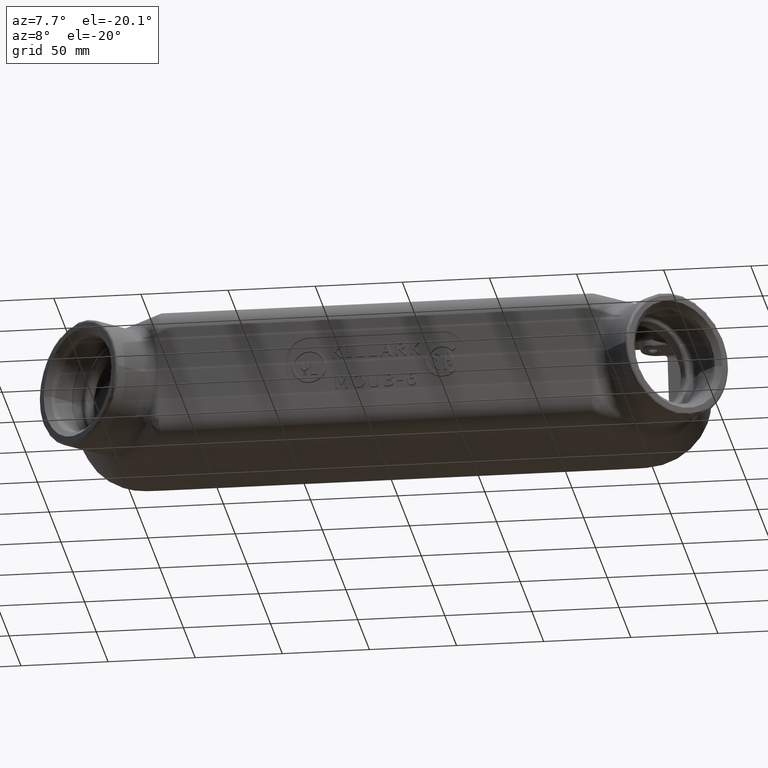
[diagram: clean part render]
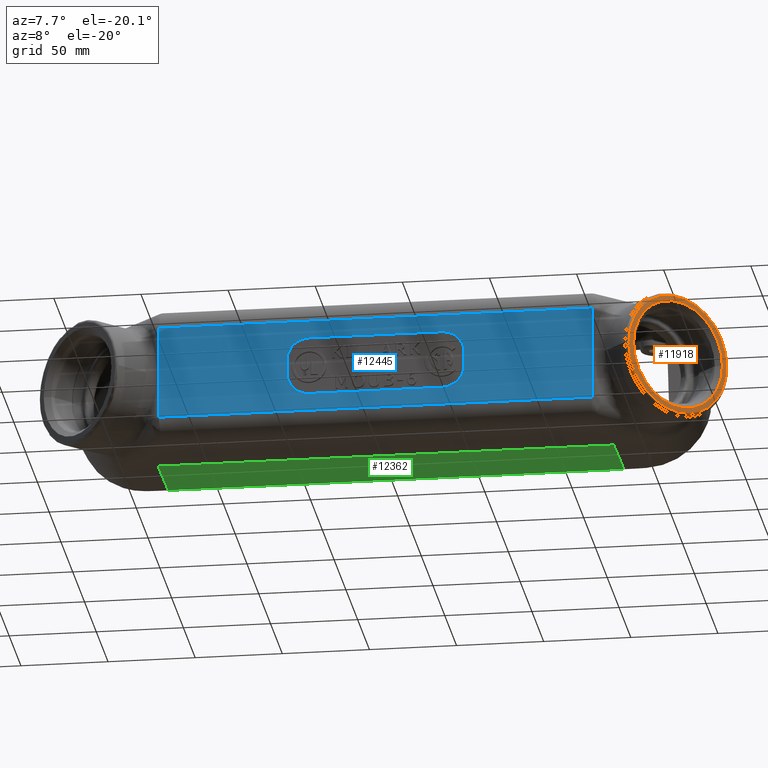
[diagram: same view with three faces highlighted in distinct colors, each labeled with its STEP entity id]
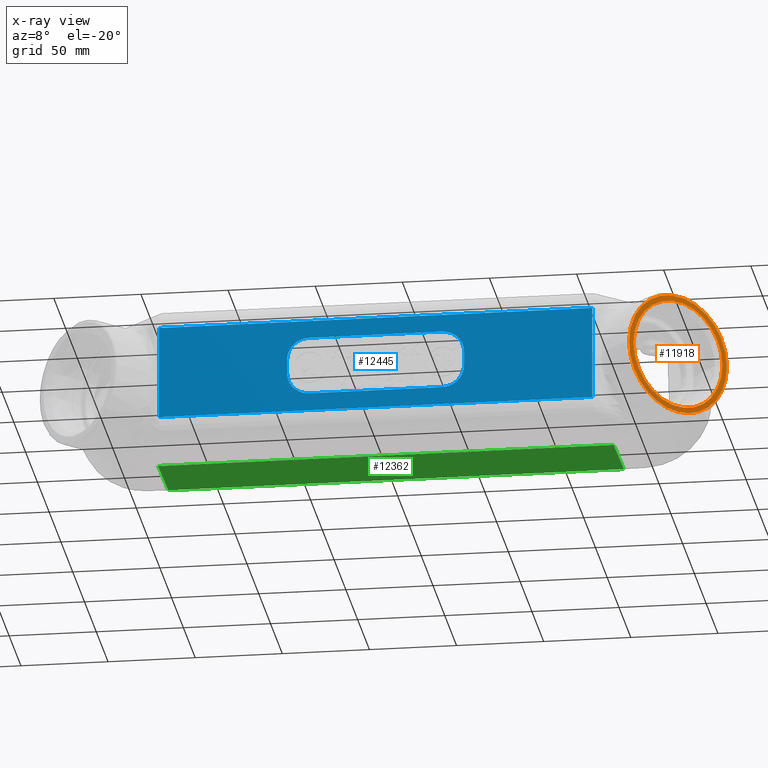
[diagram: x-ray of the same camera — body ghosted, the three highlighted faces saturated]
A machine part, auxiliary view with three faces highlighted in distinct colors.
The next image is the same camera in x-ray (body ghosted, the three faces saturated) — at least one of them is partly hidden behind the body in this view.
Their STEP definitions:

[orange] entity #11918 — the highlighted conical surface has half-angle 88.5 deg.
#839=CONICAL_SURFACE('',#12738,1.34375,1.54461638801499);
#1267=FACE_OUTER_BOUND('',#2005,.T.);
#2005=EDGE_LOOP('',(#8246,#8247,#8248,#8249,#8250,#8251,#8252));
#2950=LINE('',#17504,#3840);
#3840=VECTOR('',#13819,1.34375);
#4700=CIRCLE('',#12734,1.37663605926924);
#4701=CIRCLE('',#12735,1.37663605926924);
#4702=CIRCLE('',#12736,1.37663605926924);
#4704=CIRCLE('',#12739,1.25);
#4705=CIRCLE('',#12740,1.25);
#5091=VERTEX_POINT('',#17492);
#5092=VERTEX_POINT('',#17494);
#5093=VERTEX_POINT('',#17496);
#5094=VERTEX_POINT('',#17501);
#5095=VERTEX_POINT('',#17502);
#6307=EDGE_CURVE('',#5091,#5092,#4700,.T.);
#6308=EDGE_CURVE('',#5092,#5093,#4701,.T.);
#6309=EDGE_CURVE('',#5093,#5091,#4702,.T.);
#6311=EDGE_CURVE('',#5094,#5095,#4704,.T.);
#6312=EDGE_CURVE('',#5095,#5093,#2950,.T.);
#6313=EDGE_CURVE('',#5095,#5094,#4705,.T.);
#8246=ORIENTED_EDGE('',*,*,#6311,.T.);
#8247=ORIENTED_EDGE('',*,*,#6312,.T.);
#8248=ORIENTED_EDGE('',*,*,#6308,.F.);
#8249=ORIENTED_EDGE('',*,*,#6307,.F.);
#8250=ORIENTED_EDGE('',*,*,#6309,.F.);
#8251=ORIENTED_EDGE('',*,*,#6312,.F.);
#8252=ORIENTED_EDGE('',*,*,#6313,.T.);
#11918=ADVANCED_FACE('',(#1267),#839,.T.);
#12734=AXIS2_PLACEMENT_3D('',#17495,#13807,#13808);
#12735=AXIS2_PLACEMENT_3D('',#17497,#13809,#13810);
#12736=AXIS2_PLACEMENT_3D('',#17498,#13811,#13812);
#12738=AXIS2_PLACEMENT_3D('',#17500,#13815,#13816);
#12739=AXIS2_PLACEMENT_3D('',#17503,#13817,#13818);
#12740=AXIS2_PLACEMENT_3D('',#17505,#13820,#13821);
#13807=DIRECTION('center_axis',(-0.707106781186548,0.707106781186548,7.18443057614175E-16));
#13808=DIRECTION('ref_axis',(0.707106781186548,0.707106781186548,2.60965522091781E-17));
#13809=DIRECTION('center_axis',(-0.707106781186548,0.707106781186548,7.18443057614175E-16));
#13810=DIRECTION('ref_axis',(0.707106781186548,0.707106781186548,2.60965522091781E-17));
#13811=DIRECTION('center_axis',(-0.707106781186548,0.707106781186548,7.18443057614175E-16));
#13812=DIRECTION('ref_axis',(0.707106781186548,0.707106781186548,2.60965522091781E-17));
#13815=DIRECTION('center_axis',(-0.707106781186547,0.707106781186548,0.));
#13816=DIRECTION('ref_axis',(-0.707106781186548,-0.707106781186547,0.));
#13817=DIRECTION('center_axis',(-0.707106781186547,0.707106781186548,-1.03428456956164E-16));
#13818=DIRECTION('ref_axis',(-0.707106781186548,-0.707106781186547,0.));
#13819=DIRECTION('',(0.688354575693757,0.725374371012285,1.22422714327552E-16));
#13820=DIRECTION('center_axis',(-0.707106781186547,0.707106781186548,-1.03428456956164E-16));
#13821=DIRECTION('ref_axis',(-0.707106781186548,-0.707106781186547,0.));
#17492=CARTESIAN_POINT('',(6.78140409280061,-1.34686982155315,-1.37663605926924));
#17494=CARTESIAN_POINT('',(5.8079754000654,-2.32029851428835,2.65327679127466E-16));
#17495=CARTESIAN_POINT('Origin',(6.78140409280061,-1.34686982155315,1.32663839563733E-16));
#17496=CARTESIAN_POINT('',(7.75483278553582,-0.373441128817934,1.68589294357491E-16));
#17497=CARTESIAN_POINT('Origin',(6.78140409280061,-1.34686982155315,1.32663839563733E-16));
#17498=CARTESIAN_POINT('Origin',(6.78140409280061,-1.34686982155315,1.32663839563733E-16));
#17500=CARTESIAN_POINT('Origin',(6.78201301905592,-1.34747874780845,0.));
#17501=CARTESIAN_POINT('',(5.8998654403271,-2.233098122046,0.));
#17502=CARTESIAN_POINT('',(7.66763239329347,-0.465331169079632,1.53080849893419E-16));
#17503=CARTESIAN_POINT('Origin',(6.78374891681028,-1.34921464556281,0.));
#17504=CARTESIAN_POINT('',(7.73218775627535,-0.397304010589028,1.64561913635426E-16));
#17505=CARTESIAN_POINT('Origin',(6.78374891681028,-1.34921464556281,0.));

[blue] entity #12445 — the highlighted planar face has unit normal (0, -1, 0).
#926=FACE_BOUND('',#2574,.T.);
#1114=PLANE('',#13419);
#1794=FACE_OUTER_BOUND('',#2573,.T.);
#2573=EDGE_LOOP('',(#11068,#11069,#11070,#11071,#11072,#11073,#11074,#11075));
#2574=EDGE_LOOP('',(#11076,#11077,#11078,#11079,#11080,#11081,#11082,#11083));
#2884=ELLIPSE('',#13380,0.353613993509203,0.25);
#2885=ELLIPSE('',#13384,0.353613993509203,0.25);
#2886=ELLIPSE('',#13386,0.353613993509203,0.25);
#2887=ELLIPSE('',#13390,0.353613993509203,0.25);
#3055=LINE('',#20152,#3945);
#3059=LINE('',#20164,#3949);
#3063=LINE('',#20176,#3953);
#3529=LINE('',#28485,#4419);
#3530=LINE('',#28507,#4420);
#3531=LINE('',#28527,#4421);
#3532=LINE('',#28549,#4422);
#3642=LINE('',#29050,#4532);
#3945=VECTOR('',#14492,0.393700787401575);
#3949=VECTOR('',#14504,0.393700787401575);
#3953=VECTOR('',#14516,0.393700787401575);
#4419=VECTOR('',#15678,0.393700787401575);
#4420=VECTOR('',#15685,0.393700787401575);
#4421=VECTOR('',#15692,0.393700787401575);
#4422=VECTOR('',#15699,0.393700787401575);
#4532=VECTOR('',#15871,0.393700787401575);
#4827=CIRCLE('',#13022,0.5);
#4829=CIRCLE('',#13026,0.5);
#4831=CIRCLE('',#13030,0.5);
#4833=CIRCLE('',#13034,0.5);
#5327=VERTEX_POINT('',#20142);
#5328=VERTEX_POINT('',#20144);
#5330=VERTEX_POINT('',#20150);
#5332=VERTEX_POINT('',#20156);
#5334=VERTEX_POINT('',#20162);
#5336=VERTEX_POINT('',#20168);
#5338=VERTEX_POINT('',#20174);
#5340=VERTEX_POINT('',#20180);
#5936=VERTEX_POINT('',#27447);
#5940=VERTEX_POINT('',#27553);
#5944=VERTEX_POINT('',#27594);
#5947=VERTEX_POINT('',#27705);
#5975=VERTEX_POINT('',#28502);
#5976=VERTEX_POINT('',#28506);
#5977=VERTEX_POINT('',#28544);
#5978=VERTEX_POINT('',#28548);
#6700=EDGE_CURVE('',#5327,#5328,#4827,.T.);
#6704=EDGE_CURVE('',#5327,#5330,#3055,.T.);
#6707=EDGE_CURVE('',#5332,#5330,#4829,.T.);
#6710=EDGE_CURVE('',#5332,#5334,#3059,.T.);
#6713=EDGE_CURVE('',#5336,#5334,#4831,.T.);
#6716=EDGE_CURVE('',#5336,#5338,#3063,.T.);
#6719=EDGE_CURVE('',#5340,#5338,#4833,.T.);
#7673=EDGE_CURVE('',#5947,#5936,#3529,.T.);
#7674=EDGE_CURVE('',#5936,#5975,#2884,.T.);
#7676=EDGE_CURVE('',#5975,#5976,#3530,.T.);
#7678=EDGE_CURVE('',#5976,#5940,#2885,.T.);
#7679=EDGE_CURVE('',#5940,#5944,#3531,.T.);
#7680=EDGE_CURVE('',#5944,#5977,#2886,.T.);
#7682=EDGE_CURVE('',#5977,#5978,#3532,.T.);
#7684=EDGE_CURVE('',#5978,#5947,#2887,.T.);
#7843=EDGE_CURVE('',#5340,#5328,#3642,.T.);
#11068=ORIENTED_EDGE('',*,*,#7684,.F.);
#11069=ORIENTED_EDGE('',*,*,#7682,.F.);
#11070=ORIENTED_EDGE('',*,*,#7680,.F.);
#11071=ORIENTED_EDGE('',*,*,#7679,.F.);
#11072=ORIENTED_EDGE('',*,*,#7678,.F.);
#11073=ORIENTED_EDGE('',*,*,#7676,.F.);
#11074=ORIENTED_EDGE('',*,*,#7674,.F.);
#11075=ORIENTED_EDGE('',*,*,#7673,.F.);
#11076=ORIENTED_EDGE('',*,*,#7843,.T.);
#11077=ORIENTED_EDGE('',*,*,#6700,.F.);
#11078=ORIENTED_EDGE('',*,*,#6704,.T.);
#11079=ORIENTED_EDGE('',*,*,#6707,.F.);
#11080=ORIENTED_EDGE('',*,*,#6710,.T.);
#11081=ORIENTED_EDGE('',*,*,#6713,.F.);
#11082=ORIENTED_EDGE('',*,*,#6716,.T.);
#11083=ORIENTED_EDGE('',*,*,#6719,.F.);
#12445=ADVANCED_FACE('',(#1794,#926),#1114,.T.);
#13022=AXIS2_PLACEMENT_3D('',#20145,#14485,#14486);
#13026=AXIS2_PLACEMENT_3D('',#20158,#14498,#14499);
#13030=AXIS2_PLACEMENT_3D('',#20170,#14510,#14511);
#13034=AXIS2_PLACEMENT_3D('',#20182,#14522,#14523);
#13380=AXIS2_PLACEMENT_3D('',#28503,#15679,#15680);
#13384=AXIS2_PLACEMENT_3D('',#28525,#15688,#15689);
#13386=AXIS2_PLACEMENT_3D('',#28545,#15693,#15694);
#13390=AXIS2_PLACEMENT_3D('',#28567,#15702,#15703);
#13419=AXIS2_PLACEMENT_3D('',#29049,#15869,#15870);
#14485=DIRECTION('center_axis',(0.,-1.,0.));
#14486=DIRECTION('ref_axis',(0.707106781186547,0.,0.707106781186548));
#14492=DIRECTION('',(0.,0.,-1.));
#14498=DIRECTION('center_axis',(0.,-1.,0.));
#14499=DIRECTION('ref_axis',(0.707106781186548,0.,-0.707106781186547));
#14504=DIRECTION('',(-1.,0.,0.));
#14510=DIRECTION('center_axis',(0.,-1.,0.));
#14511=DIRECTION('ref_axis',(-0.707106781186547,0.,-0.707106781186548));
#14516=DIRECTION('',(0.,0.,1.));
#14522=DIRECTION('center_axis',(0.,-1.,0.));
#14523=DIRECTION('ref_axis',(-0.707106781186548,0.,0.707106781186547));
#15678=DIRECTION('',(1.,0.,-1.23582969285334E-16));
#15679=DIRECTION('center_axis',(0.,1.,0.));
#15680=DIRECTION('ref_axis',(0.999657324975557,0.,0.0261769483078733));
#15685=DIRECTION('',(-1.4626992656273E-16,0.,-1.));
#15688=DIRECTION('center_axis',(0.,1.,0.));
#15689=DIRECTION('ref_axis',(0.999657324975557,0.,-0.0261769483078732));
#15692=DIRECTION('',(-1.,0.,-8.89445359359819E-19));
#15693=DIRECTION('center_axis',(0.,1.,0.));
#15694=DIRECTION('ref_axis',(-0.999657324975557,0.,-0.0261769483078731));
#15699=DIRECTION('',(1.4626992656273E-16,0.,1.));
#15702=DIRECTION('center_axis',(0.,1.,0.));
#15703=DIRECTION('ref_axis',(-0.999657324975557,0.,0.0261769483078733));
#15869=DIRECTION('center_axis',(0.,-1.,0.));
#15870=DIRECTION('ref_axis',(0.,0.,-1.));
#15871=DIRECTION('',(1.,0.,0.));
#20142=CARTESIAN_POINT('',(2.,-1.71875,0.1625));
#20144=CARTESIAN_POINT('',(1.5,-1.71875,0.6625));
#20145=CARTESIAN_POINT('Origin',(1.5,-1.71875,0.1625));
#20150=CARTESIAN_POINT('',(2.,-1.71875,-0.1625));
#20152=CARTESIAN_POINT('',(2.,-1.71875,0.33125));
#20156=CARTESIAN_POINT('',(1.5,-1.71875,-0.6625));
#20158=CARTESIAN_POINT('Origin',(1.5,-1.71875,-0.1625));
#20162=CARTESIAN_POINT('',(-1.5,-1.71875,-0.6625));
#20164=CARTESIAN_POINT('',(0.999999999999999,-1.71875,-0.6625));
#20168=CARTESIAN_POINT('',(-2.,-1.71875,-0.1625));
#20170=CARTESIAN_POINT('Origin',(-1.5,-1.71875,-0.1625));
#20174=CARTESIAN_POINT('',(-2.,-1.71875,0.1625));
#20176=CARTESIAN_POINT('',(-2.,-1.71875,-0.33125));
#20180=CARTESIAN_POINT('',(-1.5,-1.71875,0.6625));
#20182=CARTESIAN_POINT('Origin',(-1.5,-1.71875,0.1625));
#27447=CARTESIAN_POINT('',(4.89643621263417,-1.71875,1.06166451183522));
#27553=CARTESIAN_POINT('',(4.89643621263417,-1.71875,-1.06166451183522));
#27594=CARTESIAN_POINT('',(-4.89643621263417,-1.71875,-1.06166451183522));
#27705=CARTESIAN_POINT('',(-4.89643621263417,-1.71875,1.06166451183522));
#28485=CARTESIAN_POINT('',(-3.5625,-1.71875,1.06166451184212));
#28502=CARTESIAN_POINT('',(4.89644660940672,-1.71875,1.05974709212812));
#28503=CARTESIAN_POINT('Origin',(4.54289321881345,-1.71875,1.05511803144982));
#28506=CARTESIAN_POINT('',(4.89644660940672,-1.71875,-1.05974709212812));
#28507=CARTESIAN_POINT('',(4.89644660940672,-1.71875,0.796874999999999));
#28525=CARTESIAN_POINT('Origin',(4.54289321881345,-1.71875,-1.05511803144982));
#28527=CARTESIAN_POINT('',(3.5625,-1.71875,-1.06166451184212));
#28544=CARTESIAN_POINT('',(-4.89644660940673,-1.71875,-1.05974709212812));
#28545=CARTESIAN_POINT('Origin',(-4.54289321881345,-1.71875,-1.05511803144982));
#28548=CARTESIAN_POINT('',(-4.89644660940673,-1.71875,1.05974709212812));
#28549=CARTESIAN_POINT('',(-4.89644660940673,-1.71875,0.796875000000001));
#28567=CARTESIAN_POINT('Origin',(-4.54289321881345,-1.71875,1.05511803144982));
#29049=CARTESIAN_POINT('Origin',(-2.79741234551221E-15,-1.71875,6.99353086378051E-16));
#29050=CARTESIAN_POINT('',(-1.,-1.71875,0.6625));

[green] entity #12362 — the highlighted planar face has unit normal (-0, 0.0262, -0.9997).
#1075=PLANE('',#13322);
#1711=FACE_OUTER_BOUND('',#2481,.T.);
#2481=EDGE_LOOP('',(#10595,#10596,#10597,#10598));
#3013=LINE('',#19566,#3903);
#3444=LINE('',#26461,#4334);
#3445=LINE('',#26484,#4335);
#3479=LINE('',#27057,#4369);
#3903=VECTOR('',#14248,0.393700787401575);
#4334=VECTOR('',#15389,0.393700787401575);
#4335=VECTOR('',#15392,0.393700787401575);
#4369=VECTOR('',#15514,0.393700787401575);
#5291=VERTEX_POINT('',#19558);
#5292=VERTEX_POINT('',#19565);
#5867=VERTEX_POINT('',#26460);
#5868=VERTEX_POINT('',#26483);
#6604=EDGE_CURVE('',#5291,#5292,#3013,.F.);
#7474=EDGE_CURVE('',#5291,#5867,#3444,.T.);
#7476=EDGE_CURVE('',#5292,#5868,#3445,.T.);
#7547=EDGE_CURVE('',#5868,#5867,#3479,.T.);
#10595=ORIENTED_EDGE('',*,*,#7476,.F.);
#10596=ORIENTED_EDGE('',*,*,#6604,.F.);
#10597=ORIENTED_EDGE('',*,*,#7474,.T.);
#10598=ORIENTED_EDGE('',*,*,#7547,.F.);
#12362=ADVANCED_FACE('',(#1711),#1075,.T.);
#13322=AXIS2_PLACEMENT_3D('',#27056,#15512,#15513);
#14248=DIRECTION('',(1.,0.,-8.89445359359819E-19));
#15389=DIRECTION('',(0.,-0.999657324975557,-0.0261769483078732));
#15392=DIRECTION('',(0.,-0.999657324975557,-0.0261769483078732));
#15512=DIRECTION('center_axis',(-8.8914056864956E-19,0.0261769483078732,
-0.999657324975557));
#15513=DIRECTION('ref_axis',(-1.,-1.16394876328415E-20,8.8914056864956E-19));
#15514=DIRECTION('',(1.,3.39665479028408E-17,0.));
#19558=CARTESIAN_POINT('',(5.14736652351681,1.71875,-1.54874294730296));
#19565=CARTESIAN_POINT('',(-5.14736652351682,1.71875,-1.54874294730296));
#19566=CARTESIAN_POINT('',(3.5625,1.71875,-1.54874294730296));
#26460=CARTESIAN_POINT('',(5.14736652351681,0.,-1.59375));
#26461=CARTESIAN_POINT('',(5.14736652351681,0.,-1.59375));
#26483=CARTESIAN_POINT('',(-5.14736652351682,-3.49676543189026E-16,-1.59375));
#26484=CARTESIAN_POINT('',(-5.14736652351682,-3.49676543189026E-16,-1.59375));
#27056=CARTESIAN_POINT('Origin',(7.125,0.,-1.59375));
#27057=CARTESIAN_POINT('',(-5.14736652351682,-3.49676543189026E-16,-1.59375));